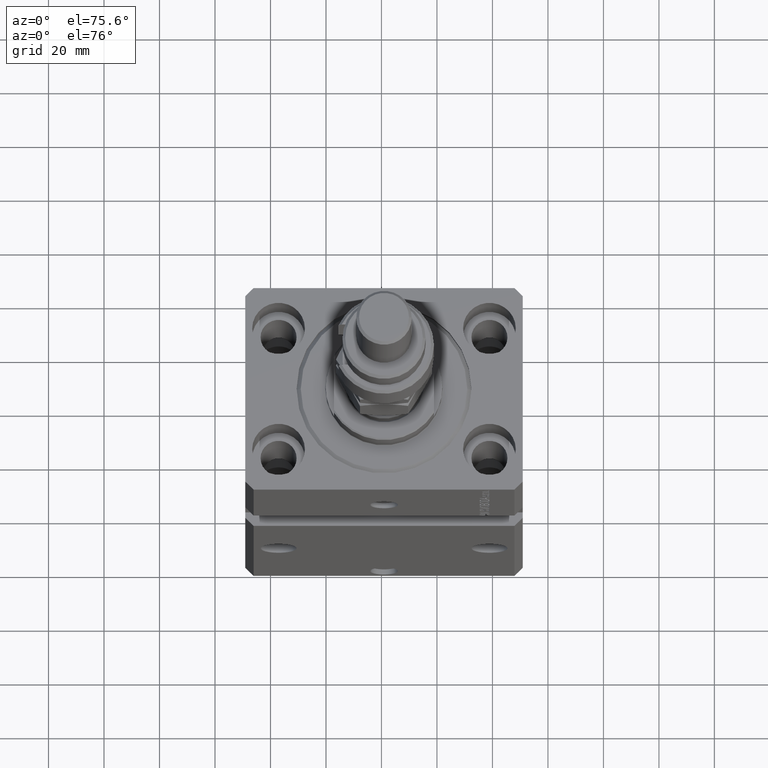
[diagram: clean part render]
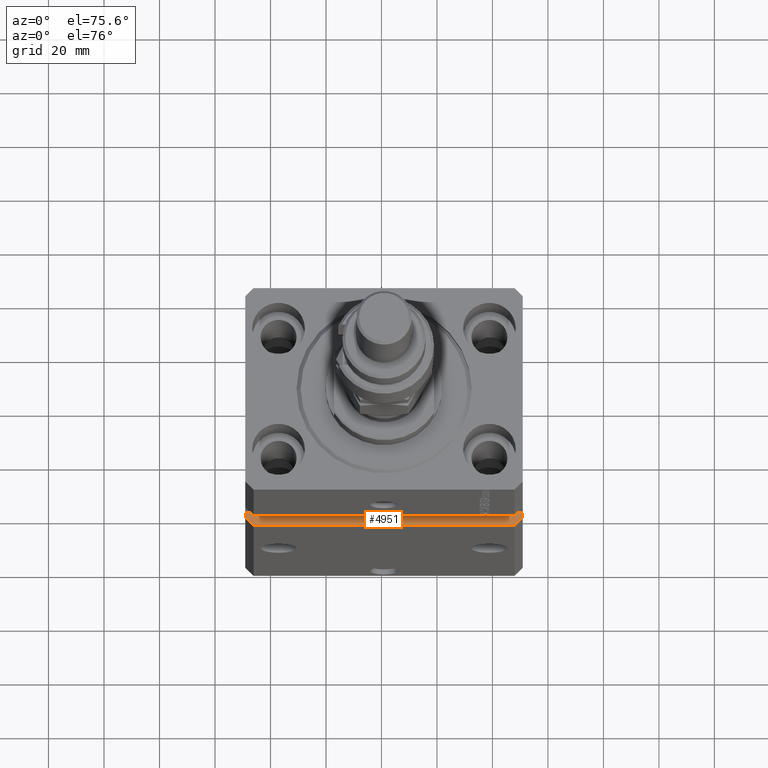
[diagram: same view with one face highlighted and labeled with its STEP entity id]
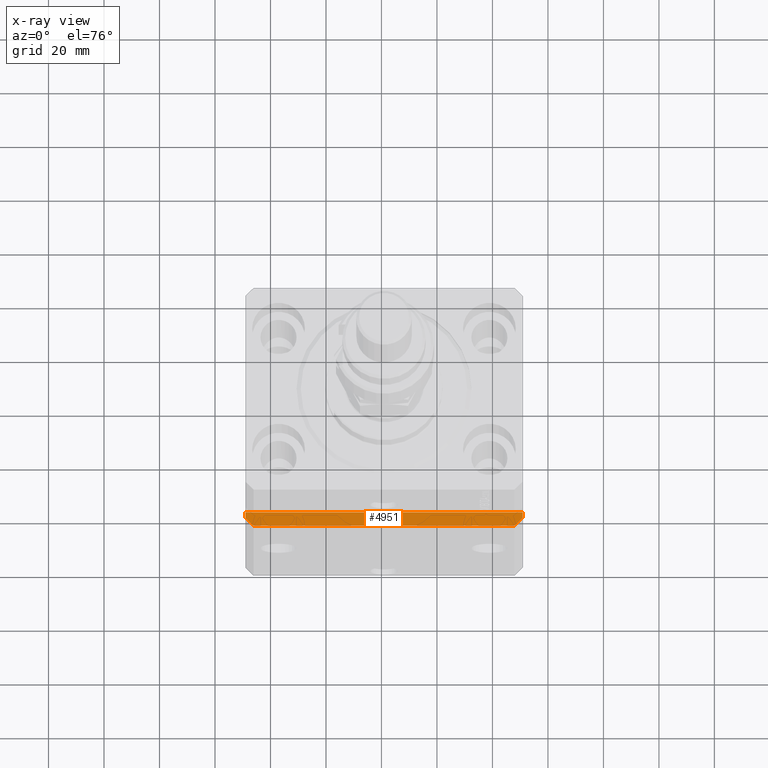
[diagram: x-ray of the same camera — body ghosted, the highlighted face saturated]
A machine part, auxiliary view. The second image highlights one B-rep face of the part: STEP entity #4951.
The next image is the same camera in x-ray: the body ghosted, the highlighted face saturated — about 0% of this face is hidden behind the body in this view.
In plain terms, the highlighted planar face has unit normal (0, 0, -1).
Its self-contained STEP definition (entity closure, byte-faithful):
#771 = ORIENTED_EDGE ( 'NONE', *, *, #7922, .F. ) ;
#945 = VECTOR ( 'NONE', #7624, 1000.000000000000114 ) ;
#1681 = VERTEX_POINT ( 'NONE', #44553 ) ;
#1848 = CARTESIAN_POINT ( 'NONE',  ( 46.99999999999999289, -37.50000000000001421, -52.49999999999997868 ) ) ;
#1870 = ORIENTED_EDGE ( 'NONE', *, *, #28625, .T. ) ;
#2713 = CARTESIAN_POINT ( 'NONE',  ( -50.00000000000000711, -34.49999999999999289, -52.49999999999999289 ) ) ;
#3270 = CARTESIAN_POINT ( 'NONE',  ( -46.99999999999998579, -37.50000000000000711, -52.50000000000000000 ) ) ;
#4951 = ADVANCED_FACE ( 'NONE', ( #49159 ), #41594, .F. ) ;
#7624 = DIRECTION ( 'NONE',  ( 0.7071067811865491270, -0.7071067811865459074, 9.813077866773615438E-17 ) ) ;
#7750 = CARTESIAN_POINT ( 'NONE',  ( -50.00000000000001421, -32.50000000000000711, -52.50000000000000000 ) ) ;
#7922 = EDGE_CURVE ( 'NONE', #27091, #1681, #18064, .T. ) ;
#8094 = CARTESIAN_POINT ( 'NONE',  ( -50.00000000000001421, -37.50000000000000711, -52.50000000000000000 ) ) ;
#9333 = EDGE_CURVE ( 'NONE', #30462, #27091, #30959, .T. ) ;
#9769 = DIRECTION ( 'NONE',  ( 1.387778780781445676E-16, 1.632144020667342421E-32, -1.000000000000000000 ) ) ;
#11524 = LINE ( 'NONE', #2713, #945 ) ;
#12337 = EDGE_CURVE ( 'NONE', #48239, #29421, #32070, .T. ) ;
#13409 = VERTEX_POINT ( 'NONE', #33214 ) ;
#14386 = VECTOR ( 'NONE', #20845, 1000.000000000000000 ) ;
#15049 = VECTOR ( 'NONE', #17207, 1000.000000000000000 ) ;
#15360 = VECTOR ( 'NONE', #29554, 1000.000000000000000 ) ;
#15820 = DIRECTION ( 'NONE',  ( 1.000000000000000000, 1.387778780781445676E-16, 1.387778780781445676E-16 ) ) ;
#17207 = DIRECTION ( 'NONE',  ( 1.000000000000000000, 1.387778780781445676E-16, 1.387778780781445676E-16 ) ) ;
#17333 = CARTESIAN_POINT ( 'NONE',  ( -50.00000000000001421, -32.50000000000000711, -52.50000000000000000 ) ) ;
#17550 = CARTESIAN_POINT ( 'NONE',  ( 49.99999999999999289, -32.49999999999999289, -52.49999999999998579 ) ) ;
#17962 = ORIENTED_EDGE ( 'NONE', *, *, #12337, .T. ) ;
#18064 = LINE ( 'NONE', #17550, #30801 ) ;
#20845 = DIRECTION ( 'NONE',  ( 0.7071067811865483499, 0.7071067811865466846, 9.813077866773606810E-17 ) ) ;
#21238 = DIRECTION ( 'NONE',  ( -1.000000000000000000, 0.000000000000000000, -1.387778780781445676E-16 ) ) ;
#25635 = LINE ( 'NONE', #38165, #15360 ) ;
#26905 = ORIENTED_EDGE ( 'NONE', *, *, #35386, .T. ) ;
#27091 = VERTEX_POINT ( 'NONE', #47895 ) ;
#28625 = EDGE_CURVE ( 'NONE', #13409, #48239, #11524, .T. ) ;
#29421 = VERTEX_POINT ( 'NONE', #45565 ) ;
#29554 = DIRECTION ( 'NONE',  ( 1.176083712526788232E-16, -1.000000000000000000, -0.000000000000000000 ) ) ;
#29941 = ORIENTED_EDGE ( 'NONE', *, *, #40017, .T. ) ;
#30462 = VERTEX_POINT ( 'NONE', #40359 ) ;
#30801 = VECTOR ( 'NONE', #50401, 1000.000000000000000 ) ;
#30877 = VECTOR ( 'NONE', #15820, 1000.000000000000000 ) ;
#30959 = LINE ( 'NONE', #7750, #30877 ) ;
#32070 = LINE ( 'NONE', #8094, #15049 ) ;
#33214 = CARTESIAN_POINT ( 'NONE',  ( -50.00000000000001421, -34.50000000000000000, -52.50000000000000000 ) ) ;
#35386 = EDGE_CURVE ( 'NONE', #29421, #1681, #40683, .T. ) ;
#38165 = CARTESIAN_POINT ( 'NONE',  ( -50.00000000000001421, -32.50000000000000711, -52.50000000000000000 ) ) ;
#40017 = EDGE_CURVE ( 'NONE', #30462, #13409, #25635, .T. ) ;
#40359 = CARTESIAN_POINT ( 'NONE',  ( -50.00000000000001421, -32.50000000000000711, -52.50000000000000000 ) ) ;
#40683 = LINE ( 'NONE', #1848, #14386 ) ;
#41594 = PLANE ( 'NONE',  #49041 ) ;
#44553 = CARTESIAN_POINT ( 'NONE',  ( 49.99999999999999289, -34.50000000000001421, -52.49999999999998579 ) ) ;
#45565 = CARTESIAN_POINT ( 'NONE',  ( 47.00000000000000000, -37.49999999999999289, -52.49999999999998579 ) ) ;
#47895 = CARTESIAN_POINT ( 'NONE',  ( 49.99999999999999289, -32.49999999999999289, -52.49999999999998579 ) ) ;
#48239 = VERTEX_POINT ( 'NONE', #3270 ) ;
#48326 = EDGE_LOOP ( 'NONE', ( #26905, #771, #50863, #29941, #1870, #17962 ) ) ;
#49041 = AXIS2_PLACEMENT_3D ( 'NONE', #17333, #9769, #21238 ) ;
#49159 = FACE_OUTER_BOUND ( 'NONE', #48326, .T. ) ;
#50401 = DIRECTION ( 'NONE',  ( 1.176083712526788232E-16, -1.000000000000000000, -0.000000000000000000 ) ) ;
#50863 = ORIENTED_EDGE ( 'NONE', *, *, #9333, .F. ) ;